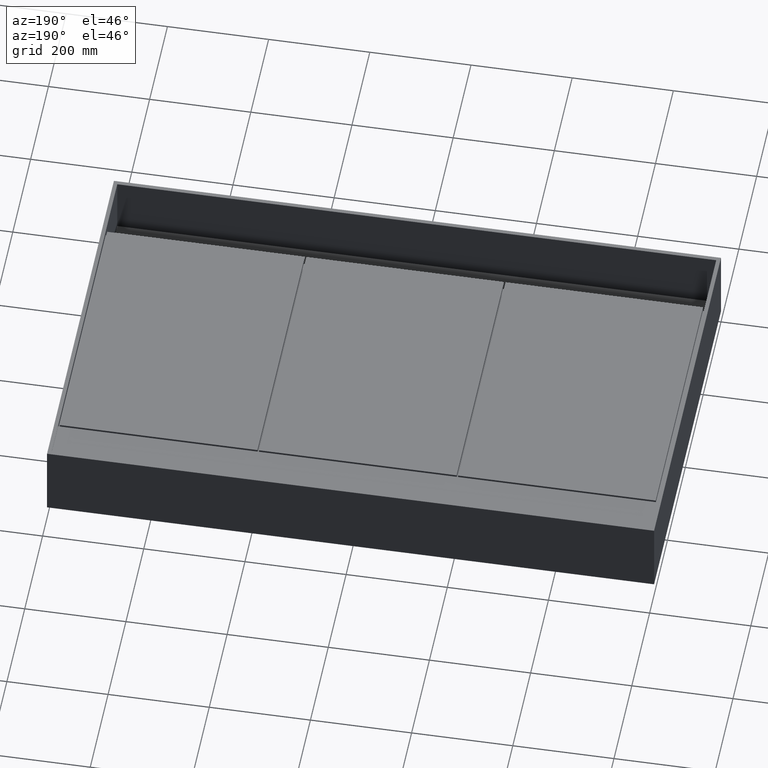
[diagram: clean part render]
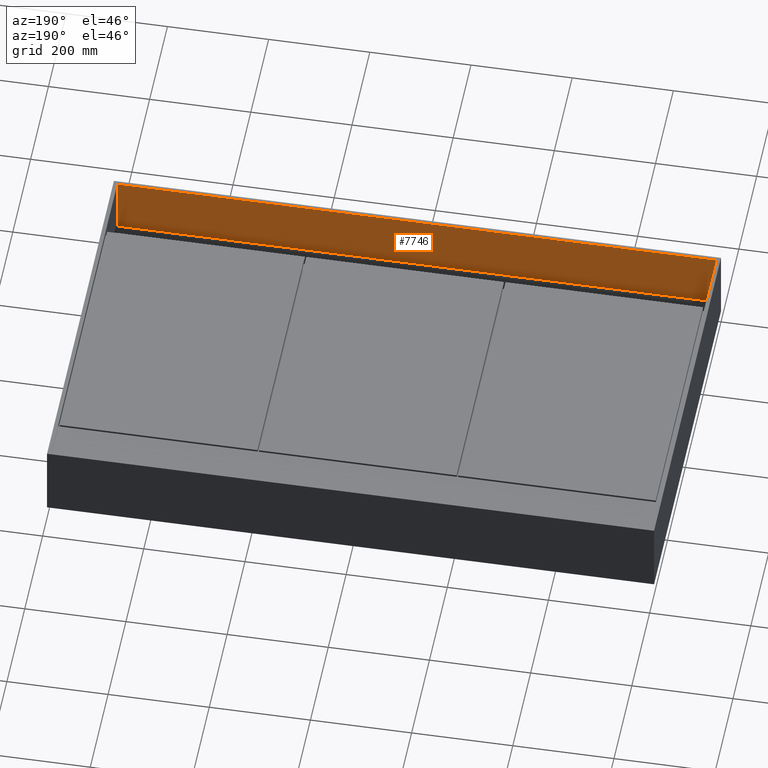
[diagram: same view with one face highlighted and labeled with its STEP entity id]
A machine part, auxiliary view. The second image highlights one B-rep face of the part: STEP entity #7746.
In plain terms, the highlighted planar face has unit normal (0, 1, 0).
Its self-contained STEP definition (entity closure, byte-faithful):
#524 = CARTESIAN_POINT ( 'NONE',  ( 0.0000000000000000000, 8.000000000000000000, 0.0000000000000000000 ) ) ;
#638 = CARTESIAN_POINT ( 'NONE',  ( 1200.000000000000000, 8.000000000000000000, -117.0000000000001137 ) ) ;
#1402 = DIRECTION ( 'NONE',  ( 0.0000000000000000000, 1.000000000000000000, 0.0000000000000000000 ) ) ;
#2143 = AXIS2_PLACEMENT_3D ( 'NONE', #13579, #1402, #6798 ) ;
#2712 = FACE_OUTER_BOUND ( 'NONE', #14946, .T. ) ;
#3526 = CARTESIAN_POINT ( 'NONE',  ( 8.000000000000007105, 8.000000000000000000, -116.9999999999999289 ) ) ;
#3622 = VECTOR ( 'NONE', #5928, 1000.000000000000000 ) ;
#3642 = LINE ( 'NONE', #9053, #6167 ) ;
#4750 = LINE ( 'NONE', #10191, #12910 ) ;
#5219 = VERTEX_POINT ( 'NONE', #7421 ) ;
#5928 = DIRECTION ( 'NONE',  ( 1.000000000000000000, 0.0000000000000000000, 0.0000000000000000000 ) ) ;
#5974 = CARTESIAN_POINT ( 'NONE',  ( 1191.999999999999773, 8.000000000000000000, -117.0000000000001137 ) ) ;
#6039 = DIRECTION ( 'NONE',  ( 1.000000000000000000, -0.0000000000000000000, -1.619075244245020119E-16 ) ) ;
#6167 = VECTOR ( 'NONE', #14481, 1000.000000000000000 ) ;
#6798 = DIRECTION ( 'NONE',  ( 0.0000000000000000000, -0.0000000000000000000, 1.000000000000000000 ) ) ;
#6879 = EDGE_CURVE ( 'NONE', #5219, #17190, #4750, .T. ) ;
#7020 = ORIENTED_EDGE ( 'NONE', *, *, #10698, .T. ) ;
#7421 = CARTESIAN_POINT ( 'NONE',  ( 1191.999999999999773, 8.000000000000000000, 0.0000000000000000000 ) ) ;
#7746 = ADVANCED_FACE ( 'NONE', ( #2712 ), #8128, .T. ) ;
#8128 = PLANE ( 'NONE',  #2143 ) ;
#8766 = VECTOR ( 'NONE', #6039, 1000.000000000000000 ) ;
#9053 = CARTESIAN_POINT ( 'NONE',  ( 8.000000000000007105, 8.000000000000000000, 0.0000000000000000000 ) ) ;
#10191 = CARTESIAN_POINT ( 'NONE',  ( 1191.999999999999773, 8.000000000000000000, -117.0000000000001137 ) ) ;
#10698 = EDGE_CURVE ( 'NONE', #12352, #14543, #3642, .T. ) ;
#11824 = EDGE_CURVE ( 'NONE', #12352, #17190, #12819, .T. ) ;
#12352 = VERTEX_POINT ( 'NONE', #3526 ) ;
#12697 = LINE ( 'NONE', #524, #3622 ) ;
#12819 = LINE ( 'NONE', #638, #8766 ) ;
#12910 = VECTOR ( 'NONE', #15615, 1000.000000000000000 ) ;
#13579 = CARTESIAN_POINT ( 'NONE',  ( 0.0000000000000000000, 8.000000000000000000, 0.0000000000000000000 ) ) ;
#14481 = DIRECTION ( 'NONE',  ( 0.0000000000000000000, 0.0000000000000000000, 1.000000000000000000 ) ) ;
#14501 = ORIENTED_EDGE ( 'NONE', *, *, #6879, .T. ) ;
#14543 = VERTEX_POINT ( 'NONE', #15382 ) ;
#14815 = ORIENTED_EDGE ( 'NONE', *, *, #15755, .T. ) ;
#14946 = EDGE_LOOP ( 'NONE', ( #14815, #14501, #16752, #7020 ) ) ;
#15382 = CARTESIAN_POINT ( 'NONE',  ( 8.000000000000007105, 8.000000000000000000, 0.0000000000000000000 ) ) ;
#15615 = DIRECTION ( 'NONE',  ( 0.0000000000000000000, 0.0000000000000000000, -1.000000000000000000 ) ) ;
#15755 = EDGE_CURVE ( 'NONE', #14543, #5219, #12697, .T. ) ;
#16752 = ORIENTED_EDGE ( 'NONE', *, *, #11824, .F. ) ;
#17190 = VERTEX_POINT ( 'NONE', #5974 ) ;